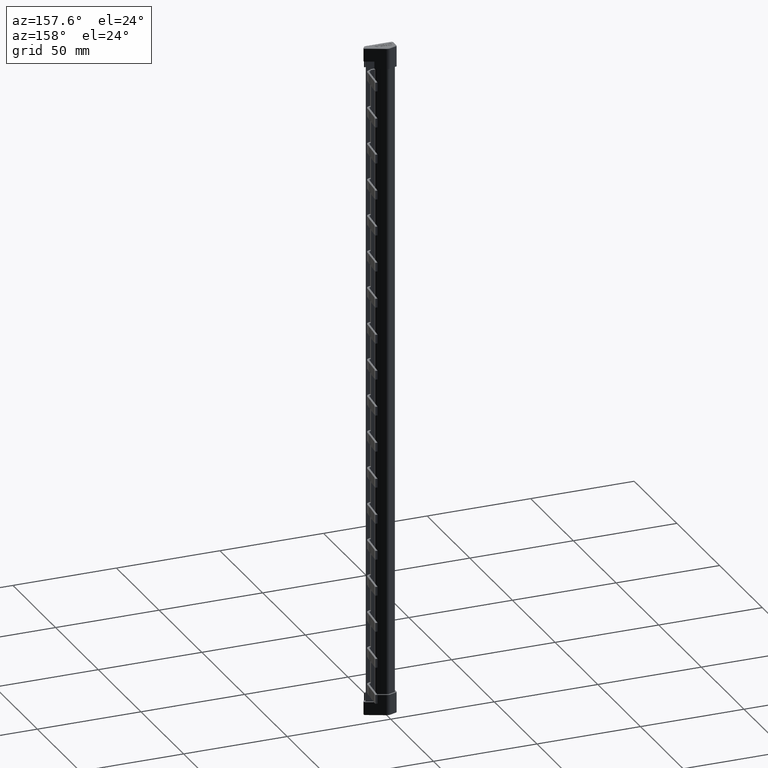
[diagram: clean part render]
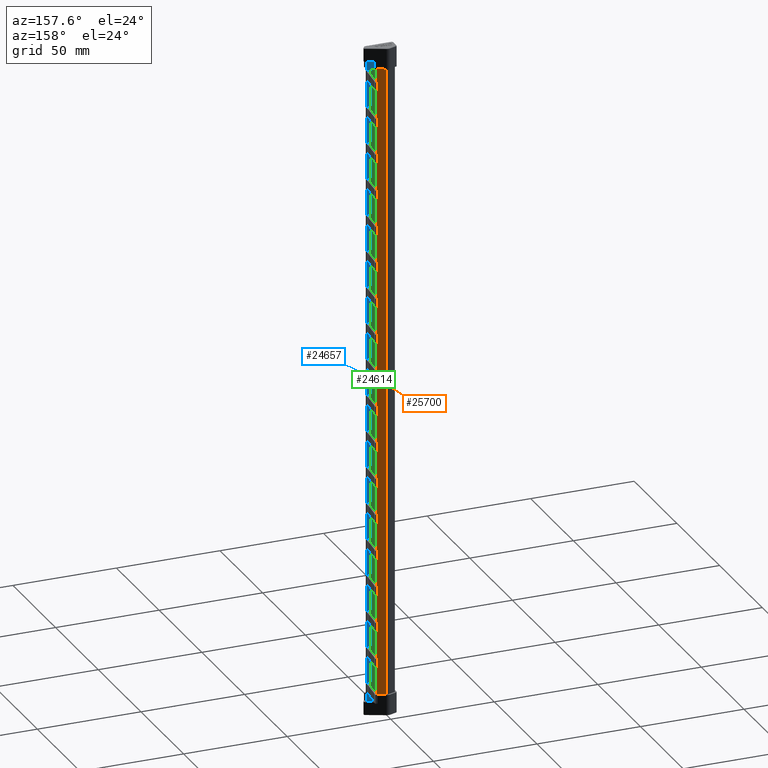
[diagram: same view with three faces highlighted in distinct colors, each labeled with its STEP entity id]
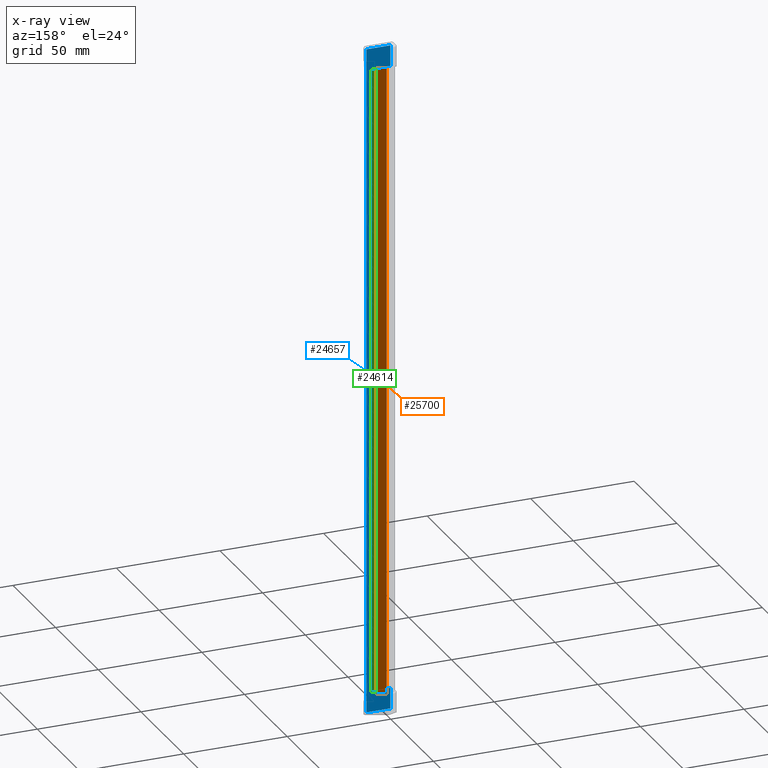
[diagram: x-ray of the same camera — body ghosted, the three highlighted faces saturated]
A machine part, auxiliary view with three faces highlighted in distinct colors.
The next image is the same camera in x-ray (body ghosted, the three faces saturated) — at least one of them is partly hidden behind the body in this view.
Their STEP definitions:

[orange] entity #25700 — the highlighted planar face has unit normal (-0.4021, -0.9156, 0).
#3764 = CARTESIAN_POINT ( 'NONE',  ( 4.041246672134451300, 5.040290789019117300, 219.0000000000000000 ) ) ;
#3768 = CARTESIAN_POINT ( 'NONE',  ( 4.023631281896191700, 5.048082171870592400, -104.9999999999999600 ) ) ;
#3781 = CARTESIAN_POINT ( 'NONE',  ( 4.023631281896191700, 5.048082171870591500, 219.0000000000000000 ) ) ;
#3795 = CARTESIAN_POINT ( 'NONE',  ( 4.041246672138782100, 5.040290789017182000, 209.9000000000000100 ) ) ;
#3844 = CARTESIAN_POINT ( 'NONE',  ( 4.041246672138773200, 5.040290789017189100, -95.90000000000002000 ) ) ;
#3861 = CARTESIAN_POINT ( 'NONE',  ( 4.041246672134451300, 5.040290789019117300, -104.9999999999999700 ) ) ;
#4503 = CARTESIAN_POINT ( 'NONE',  ( 8.337551775104342900, 3.153583439745995000, 209.9000000000000100 ) ) ;
#6702 = B_SPLINE_CURVE_WITH_KNOTS ( 'NONE', 3,
 ( #21977, #21984, #22027, #22026 ),
 .UNSPECIFIED., .F., .F.,
 ( 4, 4 ),
 ( 0.0000000000000000000, 1.000000000000000000 ),
 .UNSPECIFIED. ) ;
#6709 = B_SPLINE_CURVE_WITH_KNOTS ( 'NONE', 3,
 ( #21861, #21876, #21877, #21879 ),
 .UNSPECIFIED., .F., .F.,
 ( 4, 4 ),
 ( 0.0000000000000000000, 1.000000000000000000 ),
 .UNSPECIFIED. ) ;
#6730 = CARTESIAN_POINT ( 'NONE',  ( 8.337549575065260400, 3.153584405884049400, 219.0000000000000000 ) ) ;
#6745 = PLANE ( 'NONE',  #26524 ) ;
#6755 = DIRECTION ( 'NONE',  ( 0.9156028725539479000, -0.4020837969515297400, 0.0000000000000000000 ) ) ;
#6756 = DIRECTION ( 'NONE',  ( -0.4020837969515297400, -0.9156028725539479000, 9.339969566632776300E-019 ) ) ;
#6758 = LINE ( 'NONE', #6769, #26564 ) ;
#6769 = CARTESIAN_POINT ( 'NONE',  ( 4.023610798727805400, 5.048035521101578400, 219.0000000000000000 ) ) ;
#6786 = CARTESIAN_POINT ( 'NONE',  ( 4.041246672134435300, 5.040290789019082700, 219.0000000000000000 ) ) ;
#6805 = DIRECTION ( 'NONE',  ( 3.755450426763440500E-019, 8.551702964775421900E-019, 1.000000000000000000 ) ) ;
#6806 = DIRECTION ( 'NONE',  ( -3.755450426763440500E-019, -8.551702964775421900E-019, -1.000000000000000000 ) ) ;
#6813 = LINE ( 'NONE', #6786, #26547 ) ;
#6827 = CARTESIAN_POINT ( 'NONE',  ( 4.041246672134439800, 5.040290789019096000, -95.90000000000000600 ) ) ;
#6830 = LINE ( 'NONE', #6827, #26566 ) ;
#6865 = DIRECTION ( 'NONE',  ( 0.9156028725539388000, -0.4020837969515503900, 0.0000000000000000000 ) ) ;
#7858 = FACE_OUTER_BOUND ( 'NONE', #14053, .T. ) ;
#10792 = CARTESIAN_POINT ( 'NONE',  ( 8.337550675084532500, 3.153583922814410900, -95.89999999999999100 ) ) ;
#12100 = VERTEX_POINT ( 'NONE', #10792 ) ;
#14053 = EDGE_LOOP ( 'NONE', ( #23879, #23924, #23876, #23907, #23892, #23905, #23883, #23926 ) ) ;
#21861 = CARTESIAN_POINT ( 'NONE',  ( 4.023631281896191700, 5.048082171870591500, 219.0000000000000000 ) ) ;
#21876 = CARTESIAN_POINT ( 'NONE',  ( 4.029489423196682000, 5.045453943740746200, 219.0000000000000000 ) ) ;
#21877 = CARTESIAN_POINT ( 'NONE',  ( 4.035368047665558700, 5.042872366379914900, 219.0000000000000000 ) ) ;
#21879 = CARTESIAN_POINT ( 'NONE',  ( 4.041246672134451300, 5.040290789019117300, 219.0000000000000000 ) ) ;
#21948 = DIRECTION ( 'NONE',  ( 3.755450426763440500E-019, 8.551702964775421900E-019, 1.000000000000000000 ) ) ;
#21971 = CARTESIAN_POINT ( 'NONE',  ( 4.041246672134435300, 5.040290789019082700, 219.0000000000000000 ) ) ;
#21974 = LINE ( 'NONE', #21971, #26407 ) ;
#21977 = CARTESIAN_POINT ( 'NONE',  ( 4.023631281896191700, 5.048082171870592400, -104.9999999999999600 ) ) ;
#21984 = CARTESIAN_POINT ( 'NONE',  ( 4.029530657293334700, 5.045547550304820400, -104.9999999999999900 ) ) ;
#21997 = CARTESIAN_POINT ( 'NONE',  ( 8.337551775103824200, 3.153583439744814600, 219.0000000000000000 ) ) ;
#22016 = LINE ( 'NONE', #21997, #26479 ) ;
#22026 = CARTESIAN_POINT ( 'NONE',  ( 4.041246672134451300, 5.040290789019117300, -104.9999999999999700 ) ) ;
#22027 = CARTESIAN_POINT ( 'NONE',  ( 4.035395738251794200, 5.042934822567399800, -104.9999999999999900 ) ) ;
#22031 = DIRECTION ( 'NONE',  ( 3.755450426763440500E-019, 8.551702964775421900E-019, 1.000000000000000000 ) ) ;
#22033 = DIRECTION ( 'NONE',  ( -0.9156028725539388000, 0.4020837969515503900, 0.0000000000000000000 ) ) ;
#22066 = CARTESIAN_POINT ( 'NONE',  ( 8.337551775103786900, 3.153583439744730200, 209.9000000000000100 ) ) ;
#22081 = LINE ( 'NONE', #22066, #26498 ) ;
#23876 = ORIENTED_EDGE ( 'NONE', *, *, #25652, .F. ) ;
#23879 = ORIENTED_EDGE ( 'NONE', *, *, #25714, .F. ) ;
#23883 = ORIENTED_EDGE ( 'NONE', *, *, #25709, .F. ) ;
#23892 = ORIENTED_EDGE ( 'NONE', *, *, #25636, .F. ) ;
#23905 = ORIENTED_EDGE ( 'NONE', *, *, #25651, .F. ) ;
#23907 = ORIENTED_EDGE ( 'NONE', *, *, #25723, .F. ) ;
#23924 = ORIENTED_EDGE ( 'NONE', *, *, #25667, .F. ) ;
#23926 = ORIENTED_EDGE ( 'NONE', *, *, #25618, .T. ) ;
#25618 = EDGE_CURVE ( 'NONE', #27449, #27436, #6709, .T. ) ;
#25636 = EDGE_CURVE ( 'NONE', #27469, #27467, #21974, .T. ) ;
#25651 = EDGE_CURVE ( 'NONE', #27450, #27469, #6702, .T. ) ;
#25652 = EDGE_CURVE ( 'NONE', #12100, #28100, #22016, .T. ) ;
#25667 = EDGE_CURVE ( 'NONE', #28100, #27458, #22081, .T. ) ;
#25700 = ADVANCED_FACE ( 'NONE', ( #7858 ), #6745, .F. ) ;
#25709 = EDGE_CURVE ( 'NONE', #27449, #27450, #6758, .T. ) ;
#25714 = EDGE_CURVE ( 'NONE', #27458, #27436, #6813, .T. ) ;
#25723 = EDGE_CURVE ( 'NONE', #27467, #12100, #6830, .T. ) ;
#26407 = VECTOR ( 'NONE', #21948, 1000.000000000000000 ) ;
#26479 = VECTOR ( 'NONE', #22031, 1000.000000000000000 ) ;
#26498 = VECTOR ( 'NONE', #22033, 1000.000000000000200 ) ;
#26524 = AXIS2_PLACEMENT_3D ( 'NONE', #6730, #6756, #6755 ) ;
#26547 = VECTOR ( 'NONE', #6805, 1000.000000000000000 ) ;
#26564 = VECTOR ( 'NONE', #6806, 1000.000000000000000 ) ;
#26566 = VECTOR ( 'NONE', #6865, 1000.000000000000200 ) ;
#27436 = VERTEX_POINT ( 'NONE', #3764 ) ;
#27449 = VERTEX_POINT ( 'NONE', #3781 ) ;
#27450 = VERTEX_POINT ( 'NONE', #3768 ) ;
#27458 = VERTEX_POINT ( 'NONE', #3795 ) ;
#27467 = VERTEX_POINT ( 'NONE', #3844 ) ;
#27469 = VERTEX_POINT ( 'NONE', #3861 ) ;
#28100 = VERTEX_POINT ( 'NONE', #4503 ) ;

[blue] entity #24657 — the highlighted planar face has unit normal (-0, -1, 0).
#20 = VECTOR ( 'NONE', #1349, 1000.000000000000000 ) ;
#60 = VECTOR ( 'NONE', #1343, 1000.000000000000000 ) ;
#550 = LINE ( 'NONE', #567, #5556 ) ;
#567 = CARTESIAN_POINT ( 'NONE',  ( 10.39174218936983300, 1.100000108196531400, 173.5000000000000300 ) ) ;
#588 = LINE ( 'NONE', #617, #5549 ) ;
#605 = DIRECTION ( 'NONE',  ( 0.9999999999999794600, -2.028973208167720200E-007, 1.654363045001526200E-024 ) ) ;
#606 = DIRECTION ( 'NONE',  ( 0.9999999999999794600, -2.028973208167720200E-007, 1.654363045001526200E-024 ) ) ;
#617 = CARTESIAN_POINT ( 'NONE',  ( 10.39174218936983300, 1.100000108196531400, 81.20000000000003100 ) ) ;
#620 = LINE ( 'NONE', #645, #5586 ) ;
#623 = DIRECTION ( 'NONE',  ( 0.9999999999999794600, -2.028973208167720200E-007, 1.654363045001526200E-024 ) ) ;
#628 = DIRECTION ( 'NONE',  ( 0.9999999999999794600, -2.028973208167720200E-007, 1.654363045001526200E-024 ) ) ;
#634 = CARTESIAN_POINT ( 'NONE',  ( 10.39174218936983300, 1.100000108196531400, 116.4000000000000200 ) ) ;
#645 = CARTESIAN_POINT ( 'NONE',  ( 10.39174218936983300, 1.100000108196531400, 169.2000000000000500 ) ) ;
#657 = LINE ( 'NONE', #634, #5569 ) ;
#758 = DIRECTION ( 'NONE',  ( 0.9999999999999794600, -2.028973208167720200E-007, 1.654363045001526200E-024 ) ) ;
#766 = LINE ( 'NONE', #768, #5627 ) ;
#768 = CARTESIAN_POINT ( 'NONE',  ( 10.39174218936983300, 1.100000108196531400, 208.7000000000000500 ) ) ;
#782 = LINE ( 'NONE', #814, #5655 ) ;
#792 = CARTESIAN_POINT ( 'NONE',  ( 10.39174218936983300, 1.100000108196531400, 186.8000000000000100 ) ) ;
#811 = LINE ( 'NONE', #792, #5603 ) ;
#812 = DIRECTION ( 'NONE',  ( 0.9999999999999794600, -2.028973208167720200E-007, 1.654363045001526200E-024 ) ) ;
#814 = CARTESIAN_POINT ( 'NONE',  ( 10.39174218936983300, 1.100000108196531400, 204.4000000000000300 ) ) ;
#817 = DIRECTION ( 'NONE',  ( 0.9999999999999794600, -2.028973208167720200E-007, 1.654363045001526200E-024 ) ) ;
#821 = CARTESIAN_POINT ( 'NONE',  ( 10.39174218936983300, 1.100000108196531400, 151.6000000000000200 ) ) ;
#832 = LINE ( 'NONE', #876, #5623 ) ;
#845 = DIRECTION ( 'NONE',  ( 0.9999999999999794600, -2.028973208167720200E-007, 1.654363045001526200E-024 ) ) ;
#850 = LINE ( 'NONE', #821, #5650 ) ;
#867 = CARTESIAN_POINT ( 'NONE',  ( 10.39174218936983300, 1.100000108196531400, 103.1000000000000200 ) ) ;
#872 = DIRECTION ( 'NONE',  ( 0.9999999999999794600, -2.028973208167720200E-007, 1.654363045001526200E-024 ) ) ;
#876 = CARTESIAN_POINT ( 'NONE',  ( 10.39174218936983300, 1.100000108196531400, 155.9000000000000600 ) ) ;
#878 = DIRECTION ( 'NONE',  ( 0.9999999999999794600, -2.028973208167720200E-007, 1.654363045001526200E-024 ) ) ;
#880 = DIRECTION ( 'NONE',  ( 0.9999999999999794600, -2.028973208167720200E-007, 1.654363045001526200E-024 ) ) ;
#883 = LINE ( 'NONE', #867, #5651 ) ;
#890 = LINE ( 'NONE', #891, #5654 ) ;
#891 = CARTESIAN_POINT ( 'NONE',  ( 10.39174218936983300, 1.100000108196531400, 10.80000000000001000 ) ) ;
#909 = CARTESIAN_POINT ( 'NONE',  ( 10.39174218936983300, 1.100000108196531400, 138.3000000000000400 ) ) ;
#911 = LINE ( 'NONE', #933, #5702 ) ;
#922 = DIRECTION ( 'NONE',  ( 0.9999999999999794600, -2.028973208167720200E-007, 1.654363045001526200E-024 ) ) ;
#925 = CARTESIAN_POINT ( 'NONE',  ( 10.39174218936983300, 1.100000108196531400, 63.60000000000001600 ) ) ;
#926 = LINE ( 'NONE', #909, #5682 ) ;
#927 = DIRECTION ( 'NONE',  ( 0.9999999999999794600, -2.028973208167720200E-007, 1.654363045001526200E-024 ) ) ;
#932 = DIRECTION ( 'NONE',  ( 0.9999999999999794600, -2.028973208167720200E-007, 1.654363045001526200E-024 ) ) ;
#933 = CARTESIAN_POINT ( 'NONE',  ( 10.39174218936983300, 1.100000108196531400, 32.70000000000000300 ) ) ;
#939 = LINE ( 'NONE', #925, #5674 ) ;
#950 = LINE ( 'NONE', #980, #5686 ) ;
#980 = CARTESIAN_POINT ( 'NONE',  ( 10.39174218936983300, 1.100000108196531400, 98.80000000000002600 ) ) ;
#990 = DIRECTION ( 'NONE',  ( 0.9999999999999794600, -2.028973208167720200E-007, 1.654363045001526200E-024 ) ) ;
#994 = CARTESIAN_POINT ( 'NONE',  ( 10.39174218936983300, 1.100000108196531400, 67.90000000000003400 ) ) ;
#996 = DIRECTION ( 'NONE',  ( 0.9999999999999794600, -2.028973208167720200E-007, 1.654363045001526200E-024 ) ) ;
#997 = CARTESIAN_POINT ( 'NONE',  ( 10.39174218936983300, 1.100000108196531400, 85.50000000000001400 ) ) ;
#998 = DIRECTION ( 'NONE',  ( 0.9999999999999794600, -2.028973208167720200E-007, 1.654363045001526200E-024 ) ) ;
#1010 = CARTESIAN_POINT ( 'NONE',  ( 10.39174218936983300, 1.100000108196531400, 120.7000000000000200 ) ) ;
#1022 = DIRECTION ( 'NONE',  ( 0.9999999999999794600, -2.028973208167720200E-007, 1.654363045001526200E-024 ) ) ;
#1024 = LINE ( 'NONE', #1010, #5723 ) ;
#1025 = CARTESIAN_POINT ( 'NONE',  ( 10.39174218936983300, 1.100000108196531400, 134.0000000000000000 ) ) ;
#1027 = LINE ( 'NONE', #997, #5713 ) ;
#1034 = LINE ( 'NONE', #1025, #5721 ) ;
#1037 = LINE ( 'NONE', #994, #5711 ) ;
#1041 = LINE ( 'NONE', #1053, #4774 ) ;
#1042 = DIRECTION ( 'NONE',  ( 0.9999999999999794600, -2.028973208167720200E-007, 1.654363045001526200E-024 ) ) ;
#1051 = DIRECTION ( 'NONE',  ( 0.9999999999999794600, -2.028973208167720200E-007, 1.654363045001526200E-024 ) ) ;
#1053 = CARTESIAN_POINT ( 'NONE',  ( 10.39174218936983300, 1.100000108196531400, -24.39999999999997000 ) ) ;
#1065 = LINE ( 'NONE', #1066, #5724 ) ;
#1066 = CARTESIAN_POINT ( 'NONE',  ( 10.39174218936983300, 1.100000108196531400, 46.00000000000002100 ) ) ;
#1070 = DIRECTION ( 'NONE',  ( 0.9999999999999794600, -2.028973208167720200E-007, 1.654363045001526200E-024 ) ) ;
#1083 = CARTESIAN_POINT ( 'NONE',  ( 10.39174218936983300, 1.100000108196531400, 28.40000000000002000 ) ) ;
#1088 = DIRECTION ( 'NONE',  ( 0.9999999999999794600, -2.028973208167720200E-007, 1.654363045001526200E-024 ) ) ;
#1098 = DIRECTION ( 'NONE',  ( 0.9999999999999794600, -2.028973208167720200E-007, 1.654363045001526200E-024 ) ) ;
#1104 = CARTESIAN_POINT ( 'NONE',  ( 10.39174218936983300, 1.100000108196531400, 50.30000000000001100 ) ) ;
#1106 = DIRECTION ( 'NONE',  ( 0.9999999999999794600, -2.028973208167720200E-007, 1.654363045001526200E-024 ) ) ;
#1112 = CARTESIAN_POINT ( 'NONE',  ( 10.39174218936983300, 1.100000108196531400, -37.69999999999998900 ) ) ;
#1113 = LINE ( 'NONE', #1083, #5211 ) ;
#1115 = LINE ( 'NONE', #1112, #5705 ) ;
#1118 = LINE ( 'NONE', #1104, #5639 ) ;
#1141 = DIRECTION ( 'NONE',  ( 0.9999999999999794600, -2.028973208167720200E-007, 1.654363045001526200E-024 ) ) ;
#1145 = LINE ( 'NONE', #1168, #29432 ) ;
#1168 = CARTESIAN_POINT ( 'NONE',  ( 10.39174218936983300, 1.100000108196531400, 15.09999999999999800 ) ) ;
#1170 = LINE ( 'NONE', #1171, #29427 ) ;
#1171 = CARTESIAN_POINT ( 'NONE',  ( 10.39174218936983300, 1.100000108196531400, -6.799999999999968700 ) ) ;
#1173 = DIRECTION ( 'NONE',  ( 0.9999999999999794600, -2.028973208167720200E-007, 1.654363045001526200E-024 ) ) ;
#1230 = DIRECTION ( 'NONE',  ( 0.9999999999999794600, -2.028973208167720200E-007, 1.654363045001526200E-024 ) ) ;
#1242 = CARTESIAN_POINT ( 'NONE',  ( 10.39174218936983300, 1.100000108196531400, -20.09999999999998700 ) ) ;
#1244 = LINE ( 'NONE', #1242, #29431 ) ;
#1300 = LINE ( 'NONE', #1318, #20 ) ;
#1318 = CARTESIAN_POINT ( 'NONE',  ( 10.39174218936983300, 1.100000108196531400, -41.99999999999997200 ) ) ;
#1330 = LINE ( 'NONE', #1338, #60 ) ;
#1338 = CARTESIAN_POINT ( 'NONE',  ( 10.39174218936983300, 1.100000108196531400, -2.499999999999980000 ) ) ;
#1343 = DIRECTION ( 'NONE',  ( 0.9999999999999794600, -2.028973208167720200E-007, 1.654363045001526200E-024 ) ) ;
#1349 = DIRECTION ( 'NONE',  ( 0.9999999999999794600, -2.028973208167720200E-007, 1.654363045001526200E-024 ) ) ;
#1410 = CARTESIAN_POINT ( 'NONE',  ( 10.39174218936983300, 1.100000108196531400, 191.1000000000000200 ) ) ;
#1442 = LINE ( 'NONE', #1410, #5516 ) ;
#1443 = DIRECTION ( 'NONE',  ( 0.9999999999999794600, -2.028973208167720200E-007, 1.654363045001526200E-024 ) ) ;
#4009 = CARTESIAN_POINT ( 'NONE',  ( 10.58351463784652700, 1.100000069286415400, 186.8000000000000100 ) ) ;
#4050 = CARTESIAN_POINT ( 'NONE',  ( 10.58351463784652700, 1.100000069286415400, 204.4000000000000300 ) ) ;
#4071 = CARTESIAN_POINT ( 'NONE',  ( 10.37430495582775700, 1.100000111734499500, 191.1000000000000200 ) ) ;
#4085 = CARTESIAN_POINT ( 'NONE',  ( 10.58351463784652700, 1.100000069286415400, 46.00000000000001400 ) ) ;
#4086 = CARTESIAN_POINT ( 'NONE',  ( 10.37430495582775700, 1.100000111734499500, 28.40000000000000900 ) ) ;
#4093 = CARTESIAN_POINT ( 'NONE',  ( 10.58351463784652700, 1.100000069286415400, 191.1000000000000200 ) ) ;
#4095 = CARTESIAN_POINT ( 'NONE',  ( 10.58351463784652700, 1.100000069286415400, 169.2000000000000500 ) ) ;
#4096 = CARTESIAN_POINT ( 'NONE',  ( 10.37430495582775700, 1.100000111734499500, 103.1000000000000200 ) ) ;
#4097 = CARTESIAN_POINT ( 'NONE',  ( 10.37430495582775700, 1.100000111734499500, 204.4000000000000300 ) ) ;
#4098 = CARTESIAN_POINT ( 'NONE',  ( 10.58351463784652700, 1.100000069286415400, 208.7000000000000500 ) ) ;
#4100 = CARTESIAN_POINT ( 'NONE',  ( 10.37430495582775700, 1.100000111734499500, 85.50000000000001400 ) ) ;
#4103 = CARTESIAN_POINT ( 'NONE',  ( 10.37430495582775700, 1.100000111734499500, 186.8000000000000100 ) ) ;
#4107 = CARTESIAN_POINT ( 'NONE',  ( 10.58351463784652700, 1.100000069286415400, 81.20000000000001700 ) ) ;
#4109 = CARTESIAN_POINT ( 'NONE',  ( 10.37430495582754000, 1.100000111734499500, 208.7000000000000500 ) ) ;
#4115 = CARTESIAN_POINT ( 'NONE',  ( 10.37430495582775700, 1.100000111734499500, 169.2000000000000500 ) ) ;
#4121 = CARTESIAN_POINT ( 'NONE',  ( 10.58351463784652700, 1.100000069286415400, 67.90000000000004800 ) ) ;
#4133 = CARTESIAN_POINT ( 'NONE',  ( 10.37430495582775700, 1.100000111734499500, 173.5000000000000300 ) ) ;
#4138 = CARTESIAN_POINT ( 'NONE',  ( 10.37430495582775700, 1.100000111734499500, 81.20000000000001700 ) ) ;
#4140 = CARTESIAN_POINT ( 'NONE',  ( 10.37430495582775700, 1.100000111734499500, 151.6000000000000200 ) ) ;
#4141 = CARTESIAN_POINT ( 'NONE',  ( 10.58351463784652700, 1.100000069286415400, 173.5000000000000300 ) ) ;
#4144 = CARTESIAN_POINT ( 'NONE',  ( 10.37430495582775700, 1.100000111734499500, 138.3000000000000400 ) ) ;
#4148 = CARTESIAN_POINT ( 'NONE',  ( 10.37430495582775700, 1.100000111734499500, 98.80000000000002600 ) ) ;
#4150 = CARTESIAN_POINT ( 'NONE',  ( 10.37430495582775700, 1.100000111734499500, 63.60000000000001600 ) ) ;
#4153 = CARTESIAN_POINT ( 'NONE',  ( 10.58351463784652700, 1.100000069286415400, 120.7000000000000200 ) ) ;
#4154 = CARTESIAN_POINT ( 'NONE',  ( 10.58351463784652700, 1.100000069286415400, 151.6000000000000200 ) ) ;
#4157 = CARTESIAN_POINT ( 'NONE',  ( 10.58351463784652700, 1.100000069286415400, -90.50000000000000000 ) ) ;
#4162 = CARTESIAN_POINT ( 'NONE',  ( 10.58351463784652700, 1.100000069286415400, -94.79999999999996900 ) ) ;
#4164 = CARTESIAN_POINT ( 'NONE',  ( 10.37430495582775700, 1.100000111734499500, 46.00000000000001400 ) ) ;
#4166 = CARTESIAN_POINT ( 'NONE',  ( 10.58351463784652700, 1.100000069286415400, 103.1000000000000200 ) ) ;
#4167 = CARTESIAN_POINT ( 'NONE',  ( 10.37430495582775700, 1.100000111734499500, 134.0000000000000000 ) ) ;
#4168 = CARTESIAN_POINT ( 'NONE',  ( 10.37430495582775700, 1.100000111734499500, 155.9000000000000600 ) ) ;
#4172 = CARTESIAN_POINT ( 'NONE',  ( 10.58351463784652700, 1.100000069286415400, 50.30000000000001100 ) ) ;
#4174 = CARTESIAN_POINT ( 'NONE',  ( 10.58351463784652700, 1.100000069286415400, 134.0000000000000000 ) ) ;
#4179 = CARTESIAN_POINT ( 'NONE',  ( 10.58351463784652700, 1.100000069286415400, 155.9000000000000600 ) ) ;
#4180 = CARTESIAN_POINT ( 'NONE',  ( 10.37430495582775700, 1.100000111734499500, 67.90000000000004800 ) ) ;
#4182 = CARTESIAN_POINT ( 'NONE',  ( 10.58351463784652700, 1.100000069286415400, 98.80000000000002600 ) ) ;
#4184 = CARTESIAN_POINT ( 'NONE',  ( 10.37430495582775700, 1.100000111734499500, -94.79999999999996900 ) ) ;
#4187 = CARTESIAN_POINT ( 'NONE',  ( 10.58351463784652700, 1.100000069286415400, 28.40000000000000900 ) ) ;
#4195 = CARTESIAN_POINT ( 'NONE',  ( 10.58351463784652700, 1.100000069286415400, 116.4000000000000200 ) ) ;
#4199 = CARTESIAN_POINT ( 'NONE',  ( 10.37430495582775700, 1.100000111734499500, -72.89999999999999100 ) ) ;
#4202 = CARTESIAN_POINT ( 'NONE',  ( 10.58351463784652700, 1.100000069286415400, 15.10000000000000100 ) ) ;
#4210 = CARTESIAN_POINT ( 'NONE',  ( 10.58351463784652700, 1.100000069286415400, 10.80000000000000400 ) ) ;
#4211 = CARTESIAN_POINT ( 'NONE',  ( 10.37430495582775700, 1.100000111734499500, 10.80000000000000400 ) ) ;
#4213 = CARTESIAN_POINT ( 'NONE',  ( 10.37430495582775700, 1.100000111734499500, 15.10000000000000100 ) ) ;
#4214 = CARTESIAN_POINT ( 'NONE',  ( 10.58351463784652700, 1.100000069286415400, 32.70000000000001000 ) ) ;
#4215 = CARTESIAN_POINT ( 'NONE',  ( 10.37430495582775700, 1.100000111734499500, -20.09999999999998000 ) ) ;
#4217 = CARTESIAN_POINT ( 'NONE',  ( 10.58351463784652700, 1.100000069286415400, -72.89999999999999100 ) ) ;
#4218 = CARTESIAN_POINT ( 'NONE',  ( 10.37430495582775700, 1.100000111734499500, -90.50000000000000000 ) ) ;
#4221 = CARTESIAN_POINT ( 'NONE',  ( 10.37430495582775700, 1.100000111734499500, -59.59999999999995900 ) ) ;
#4222 = CARTESIAN_POINT ( 'NONE',  ( 10.58351463784652700, 1.100000069286415400, -24.39999999999997700 ) ) ;
#4223 = CARTESIAN_POINT ( 'NONE',  ( 10.58351463784652700, 1.100000069286415400, -77.20000000000001700 ) ) ;
#4226 = CARTESIAN_POINT ( 'NONE',  ( 10.37430495582775700, 1.100000111734499500, -55.29999999999999000 ) ) ;
#4228 = CARTESIAN_POINT ( 'NONE',  ( 10.58351463784652700, 1.100000069286415400, 85.50000000000001400 ) ) ;
#4230 = CARTESIAN_POINT ( 'NONE',  ( 10.37430495582775700, 1.100000111734499500, 116.4000000000000200 ) ) ;
#4233 = CARTESIAN_POINT ( 'NONE',  ( 10.37430495582775700, 1.100000111734499500, 50.30000000000001100 ) ) ;
#4234 = CARTESIAN_POINT ( 'NONE',  ( 10.37430495582775700, 1.100000111734499500, -41.99999999999995700 ) ) ;
#4236 = CARTESIAN_POINT ( 'NONE',  ( 10.58351463784652700, 1.100000069286415400, -6.799999999999972300 ) ) ;
#4237 = CARTESIAN_POINT ( 'NONE',  ( 10.58351463784652700, 1.100000069286415400, -41.99999999999995700 ) ) ;
#4244 = CARTESIAN_POINT ( 'NONE',  ( 10.58351463784652700, 1.100000069286415400, -2.499999999999974200 ) ) ;
#4247 = CARTESIAN_POINT ( 'NONE',  ( 10.58351463784652700, 1.100000069286415400, -37.69999999999998200 ) ) ;
#4249 = CARTESIAN_POINT ( 'NONE',  ( 10.37430495582775700, 1.100000111734499500, 120.7000000000000200 ) ) ;
#4250 = CARTESIAN_POINT ( 'NONE',  ( 10.58351463784652700, 1.100000069286415400, -55.29999999999999000 ) ) ;
#4252 = CARTESIAN_POINT ( 'NONE',  ( 10.37430495582775700, 1.100000111734499500, -77.20000000000001700 ) ) ;
#4259 = CARTESIAN_POINT ( 'NONE',  ( 10.37430495582775700, 1.100000111734499500, -37.69999999999998200 ) ) ;
#4260 = CARTESIAN_POINT ( 'NONE',  ( 10.58351463784652700, 1.100000069286415400, 63.60000000000001600 ) ) ;
#4262 = CARTESIAN_POINT ( 'NONE',  ( 10.58351463784652700, 1.100000069286415400, 138.3000000000000400 ) ) ;
#4270 = CARTESIAN_POINT ( 'NONE',  ( 0.5999928904455424900, 1.100000550454310900, -94.99999999999997200 ) ) ;
#4276 = CARTESIAN_POINT ( 'NONE',  ( 0.5999928904456702800, 1.100000219591716200, 209.0000000000000300 ) ) ;
#4278 = CARTESIAN_POINT ( 'NONE',  ( 12.20616429985077500, 1.099999740055146900, -104.9999999999999600 ) ) ;
#4279 = CARTESIAN_POINT ( 'NONE',  ( 10.37430495582775700, 1.100000111734499500, -2.499999999999974200 ) ) ;
#4304 = CARTESIAN_POINT ( 'NONE',  ( 10.37430495582775700, 1.100000111734499500, -24.39999999999997700 ) ) ;
#4307 = CARTESIAN_POINT ( 'NONE',  ( 10.37430495582775700, 1.100000111734499500, 32.70000000000001000 ) ) ;
#4309 = CARTESIAN_POINT ( 'NONE',  ( 10.58351463784652700, 1.100000069286415400, -59.59999999999995900 ) ) ;
#4314 = CARTESIAN_POINT ( 'NONE',  ( 10.58351463784652700, 1.100000069286415400, -20.09999999999998000 ) ) ;
#4317 = CARTESIAN_POINT ( 'NONE',  ( 10.37430495582775700, 1.100000111734499500, -6.799999999999972300 ) ) ;
#4395 = CARTESIAN_POINT ( 'NONE',  ( 0.5999928904458802200, 1.100002094916230400, 219.0000000000000000 ) ) ;
#4405 = CARTESIAN_POINT ( 'NONE',  ( 10.37430495582757800, 1.099999228333157000, -94.99999999999995700 ) ) ;
#4440 = CARTESIAN_POINT ( 'NONE',  ( 0.5999928904456217600, 1.100002094916230400, -104.9999999999999700 ) ) ;
#4444 = CARTESIAN_POINT ( 'NONE',  ( 10.37430495582721900, 1.099999594483536100, 209.0000000000000300 ) ) ;
#4448 = CARTESIAN_POINT ( 'NONE',  ( 12.20616429985077500, 1.099999740055146900, 219.0000000000000000 ) ) ;
#4774 = VECTOR ( 'NONE', #1051, 1000.000000000000000 ) ;
#5211 = VECTOR ( 'NONE', #1098, 1000.000000000000000 ) ;
#5516 = VECTOR ( 'NONE', #1443, 1000.000000000000000 ) ;
#5549 = VECTOR ( 'NONE', #605, 1000.000000000000000 ) ;
#5556 = VECTOR ( 'NONE', #606, 1000.000000000000000 ) ;
#5569 = VECTOR ( 'NONE', #628, 1000.000000000000000 ) ;
#5586 = VECTOR ( 'NONE', #623, 1000.000000000000000 ) ;
#5603 = VECTOR ( 'NONE', #812, 1000.000000000000000 ) ;
#5623 = VECTOR ( 'NONE', #880, 1000.000000000000000 ) ;
#5627 = VECTOR ( 'NONE', #758, 1000.000000000000000 ) ;
#5639 = VECTOR ( 'NONE', #1106, 1000.000000000000000 ) ;
#5650 = VECTOR ( 'NONE', #845, 1000.000000000000000 ) ;
#5651 = VECTOR ( 'NONE', #872, 1000.000000000000000 ) ;
#5654 = VECTOR ( 'NONE', #878, 1000.000000000000000 ) ;
#5655 = VECTOR ( 'NONE', #817, 1000.000000000000000 ) ;
#5674 = VECTOR ( 'NONE', #922, 1000.000000000000000 ) ;
#5682 = VECTOR ( 'NONE', #927, 1000.000000000000000 ) ;
#5686 = VECTOR ( 'NONE', #990, 1000.000000000000000 ) ;
#5702 = VECTOR ( 'NONE', #932, 1000.000000000000000 ) ;
#5705 = VECTOR ( 'NONE', #1088, 1000.000000000000000 ) ;
#5711 = VECTOR ( 'NONE', #1022, 1000.000000000000000 ) ;
#5713 = VECTOR ( 'NONE', #1070, 1000.000000000000000 ) ;
#5721 = VECTOR ( 'NONE', #996, 1000.000000000000000 ) ;
#5723 = VECTOR ( 'NONE', #998, 1000.000000000000000 ) ;
#5724 = VECTOR ( 'NONE', #1042, 1000.000000000000000 ) ;
#5835 = EDGE_CURVE ( 'NONE', #27763, #27775, #1442, .T. ) ;
#5874 = EDGE_CURVE ( 'NONE', #27760, #27782, #550, .T. ) ;
#5877 = EDGE_CURVE ( 'NONE', #27833, #27759, #588, .T. ) ;
#5887 = EDGE_CURVE ( 'NONE', #27778, #27776, #620, .T. ) ;
#5891 = EDGE_CURVE ( 'NONE', #27857, #27824, #657, .T. ) ;
#5903 = EDGE_CURVE ( 'NONE', #27767, #27720, #766, .T. ) ;
#5915 = EDGE_CURVE ( 'NONE', #27755, #27714, #782, .T. ) ;
#5917 = EDGE_CURVE ( 'NONE', #27744, #27674, #811, .T. ) ;
#5925 = EDGE_CURVE ( 'NONE', #27788, #27831, #850, .T. ) ;
#5937 = EDGE_CURVE ( 'NONE', #27838, #27814, #832, .T. ) ;
#5940 = EDGE_CURVE ( 'NONE', #27750, #27821, #883, .T. ) ;
#5948 = EDGE_CURVE ( 'NONE', #27901, #27877, #890, .T. ) ;
#5957 = EDGE_CURVE ( 'NONE', #27826, #27847, #939, .T. ) ;
#5960 = EDGE_CURVE ( 'NONE', #27813, #27852, #926, .T. ) ;
#5962 = EDGE_CURVE ( 'NONE', #27927, #27849, #911, .T. ) ;
#5969 = EDGE_CURVE ( 'NONE', #27820, #27843, #950, .T. ) ;
#5983 = EDGE_CURVE ( 'NONE', #27834, #27807, #1034, .T. ) ;
#5991 = EDGE_CURVE ( 'NONE', #27832, #27752, #1037, .T. ) ;
#5992 = EDGE_CURVE ( 'NONE', #27858, #27830, #1024, .T. ) ;
#5993 = EDGE_CURVE ( 'NONE', #27756, #27846, #1027, .T. ) ;
#5995 = EDGE_CURVE ( 'NONE', #27789, #27754, #1065, .T. ) ;
#6000 = EDGE_CURVE ( 'NONE', #27924, #27859, #1041, .T. ) ;
#6012 = EDGE_CURVE ( 'NONE', #27870, #27900, #1115, .T. ) ;
#6019 = EDGE_CURVE ( 'NONE', #27771, #27792, #1113, .T. ) ;
#6020 = EDGE_CURVE ( 'NONE', #27853, #27790, #1118, .T. ) ;
#6022 = EDGE_CURVE ( 'NONE', #27848, #27893, #1145, .T. ) ;
#6052 = EDGE_CURVE ( 'NONE', #27928, #27897, #1170, .T. ) ;
#6061 = EDGE_CURVE ( 'NONE', #27867, #27920, #1244, .T. ) ;
#6086 = EDGE_CURVE ( 'NONE', #27881, #27905, #1300, .T. ) ;
#6090 = EDGE_CURVE ( 'NONE', #27921, #27873, #1330, .T. ) ;
#13945 = EDGE_LOOP ( 'NONE', ( #23415, #23376, #23405, #23436, #23389, #23408, #23406, #23359, #23388, #23396, #23381, #23463, #23414, #23379, #23399, #23383, #23455, #23374, #23382, #23367, #23370, #23380, #23384, #23410, #23365, #23357, #23398, #23474, #23417, #23413, #23373, #23375, #23390, #23400, #23377, #23391, #23363, #23411, #23392, #23385, #23387, #23412, #23479, #23369, #23401, #23386, #23394, #23407, #23378, #23364, #23366, #23360, #23371, #23393, #23356, #23358, #23362, #23444, #23440, #23441, #23439, #23465, #23421, #23459, #23442, #23430, #23469, #23480, #23473, #23432, #23481, #23462, #23419, #23488, #23466, #23496, #23471, #23516, #23452, #23427 ) ) ;
#14800 = LINE ( 'NONE', #14843, #25888 ) ;
#14803 = DIRECTION ( 'NONE',  ( 0.9999999999999794600, -2.028973208167720200E-007, 1.654363045001526200E-024 ) ) ;
#14843 = CARTESIAN_POINT ( 'NONE',  ( 10.39174218936983300, 1.100000108196531400, -94.79999999999999700 ) ) ;
#14905 = CARTESIAN_POINT ( 'NONE',  ( 10.39174218936983300, 1.100000108196531400, -72.89999999999999100 ) ) ;
#14913 = LINE ( 'NONE', #14905, #25930 ) ;
#14935 = DIRECTION ( 'NONE',  ( 0.9999999999999794600, -2.028973208167720200E-007, 1.654363045001526200E-024 ) ) ;
#14953 = LINE ( 'NONE', #14960, #25968 ) ;
#14960 = CARTESIAN_POINT ( 'NONE',  ( 10.39174218936983300, 1.100000108196531400, -77.19999999999998900 ) ) ;
#15015 = DIRECTION ( 'NONE',  ( 0.9999999999999794600, -2.028973208167720200E-007, 1.654363045001526200E-024 ) ) ;
#15017 = LINE ( 'NONE', #15044, #25991 ) ;
#15024 = DIRECTION ( 'NONE',  ( 0.9999999999999794600, -2.028973208167720200E-007, 1.654363045001526200E-024 ) ) ;
#15044 = CARTESIAN_POINT ( 'NONE',  ( 10.39174218936983300, 1.100000108196531400, -55.29999999999999700 ) ) ;
#15079 = CARTESIAN_POINT ( 'NONE',  ( 10.37430495582775700, 1.100000111734499500, 219.0000000000000000 ) ) ;
#15108 = LINE ( 'NONE', #15169, #26026 ) ;
#15130 = CARTESIAN_POINT ( 'NONE',  ( 10.58351463784652700, 1.100000069286415400, 219.0000000000000000 ) ) ;
#15133 = LINE ( 'NONE', #15130, #25975 ) ;
#15134 = DIRECTION ( 'NONE',  ( -0.0000000000000000000, -0.0000000000000000000, -1.000000000000000000 ) ) ;
#15154 = LINE ( 'NONE', #15165, #26009 ) ;
#15159 = CARTESIAN_POINT ( 'NONE',  ( 10.58351463784652700, 1.100000069286415400, 219.0000000000000000 ) ) ;
#15160 = CARTESIAN_POINT ( 'NONE',  ( 10.39174218936983300, 1.100000108196531400, -90.50000000000000000 ) ) ;
#15163 = DIRECTION ( 'NONE',  ( -0.0000000000000000000, -0.0000000000000000000, -1.000000000000000000 ) ) ;
#15165 = CARTESIAN_POINT ( 'NONE',  ( 10.58351463784652700, 1.100000069286415400, 219.0000000000000000 ) ) ;
#15167 = DIRECTION ( 'NONE',  ( -0.0000000000000000000, -0.0000000000000000000, -1.000000000000000000 ) ) ;
#15169 = CARTESIAN_POINT ( 'NONE',  ( 10.58351463784652700, 1.100000069286415400, 219.0000000000000000 ) ) ;
#15172 = LINE ( 'NONE', #15159, #25984 ) ;
#15174 = CARTESIAN_POINT ( 'NONE',  ( 10.58351463784652700, 1.100000069286415400, 219.0000000000000000 ) ) ;
#15175 = DIRECTION ( 'NONE',  ( 0.9999999999999794600, -2.028973208167720200E-007, 1.654363045001526200E-024 ) ) ;
#15178 = LINE ( 'NONE', #15187, #26049 ) ;
#15180 = DIRECTION ( 'NONE',  ( -0.0000000000000000000, -0.0000000000000000000, -1.000000000000000000 ) ) ;
#15184 = LINE ( 'NONE', #15160, #26012 ) ;
#15187 = CARTESIAN_POINT ( 'NONE',  ( 10.58351463784652700, 1.100000069286415400, 219.0000000000000000 ) ) ;
#15191 = LINE ( 'NONE', #15174, #26016 ) ;
#15196 = DIRECTION ( 'NONE',  ( -0.0000000000000000000, -0.0000000000000000000, -1.000000000000000000 ) ) ;
#15197 = DIRECTION ( 'NONE',  ( -0.0000000000000000000, -0.0000000000000000000, -1.000000000000000000 ) ) ;
#15210 = DIRECTION ( 'NONE',  ( -0.0000000000000000000, -0.0000000000000000000, -1.000000000000000000 ) ) ;
#15217 = CARTESIAN_POINT ( 'NONE',  ( 10.58351463784652700, 1.100000069286415400, 219.0000000000000000 ) ) ;
#15218 = CARTESIAN_POINT ( 'NONE',  ( 10.58351463784652700, 1.100000069286415400, 219.0000000000000000 ) ) ;
#15219 = LINE ( 'NONE', #15217, #26074 ) ;
#15220 = DIRECTION ( 'NONE',  ( -0.0000000000000000000, -0.0000000000000000000, -1.000000000000000000 ) ) ;
#15227 = LINE ( 'NONE', #15218, #26082 ) ;
#15251 = LINE ( 'NONE', #15282, #26029 ) ;
#15282 = CARTESIAN_POINT ( 'NONE',  ( 10.58351463784652700, 1.100000069286415400, 219.0000000000000000 ) ) ;
#15284 = LINE ( 'NONE', #15342, #26038 ) ;
#15308 = LINE ( 'NONE', #15389, #26087 ) ;
#15309 = DIRECTION ( 'NONE',  ( -0.0000000000000000000, -0.0000000000000000000, -1.000000000000000000 ) ) ;
#15310 = LINE ( 'NONE', #15314, #26053 ) ;
#15312 = DIRECTION ( 'NONE',  ( -0.0000000000000000000, -0.0000000000000000000, -1.000000000000000000 ) ) ;
#15314 = CARTESIAN_POINT ( 'NONE',  ( 10.58351463784652700, 1.100000069286415400, 219.0000000000000000 ) ) ;
#15326 = LINE ( 'NONE', #15345, #26050 ) ;
#15341 = LINE ( 'NONE', #15377, #26030 ) ;
#15342 = CARTESIAN_POINT ( 'NONE',  ( 10.58351463784652700, 1.100000069286415400, 219.0000000000000000 ) ) ;
#15343 = LINE ( 'NONE', #15344, #26040 ) ;
#15344 = CARTESIAN_POINT ( 'NONE',  ( 10.58351463784652700, 1.100000069286415400, 219.0000000000000000 ) ) ;
#15345 = CARTESIAN_POINT ( 'NONE',  ( 10.39174218936983300, 1.100000108196531400, -59.59999999999998000 ) ) ;
#15347 = DIRECTION ( 'NONE',  ( -0.0000000000000000000, -0.0000000000000000000, -1.000000000000000000 ) ) ;
#15349 = DIRECTION ( 'NONE',  ( -0.0000000000000000000, -0.0000000000000000000, -1.000000000000000000 ) ) ;
#15350 = DIRECTION ( 'NONE',  ( 0.9999999999999794600, -2.028973208167720200E-007, 1.654363045001526200E-024 ) ) ;
#15358 = DIRECTION ( 'NONE',  ( -0.0000000000000000000, -0.0000000000000000000, -1.000000000000000000 ) ) ;
#15367 = DIRECTION ( 'NONE',  ( -0.0000000000000000000, -0.0000000000000000000, -1.000000000000000000 ) ) ;
#15372 = CARTESIAN_POINT ( 'NONE',  ( 10.58351463784652700, 1.100000069286415400, 219.0000000000000000 ) ) ;
#15377 = CARTESIAN_POINT ( 'NONE',  ( 10.58351463784652700, 1.100000069286415400, 219.0000000000000000 ) ) ;
#15389 = CARTESIAN_POINT ( 'NONE',  ( 10.58351463784652700, 1.100000069286415400, 219.0000000000000000 ) ) ;
#15396 = DIRECTION ( 'NONE',  ( -0.0000000000000000000, -0.0000000000000000000, -1.000000000000000000 ) ) ;
#15397 = LINE ( 'NONE', #15372, #26080 ) ;
#15449 = CARTESIAN_POINT ( 'NONE',  ( 10.58351463784652700, 1.100000069286415400, 219.0000000000000000 ) ) ;
#15451 = LINE ( 'NONE', #15449, #26100 ) ;
#15452 = DIRECTION ( 'NONE',  ( -0.0000000000000000000, -0.0000000000000000000, -1.000000000000000000 ) ) ;
#15507 = LINE ( 'NONE', #15539, #26111 ) ;
#15509 = CARTESIAN_POINT ( 'NONE',  ( 0.5999928904460490900, 1.100002094916230400, 219.0000000000000000 ) ) ;
#15510 = LINE ( 'NONE', #15511, #26137 ) ;
#15511 = CARTESIAN_POINT ( 'NONE',  ( 10.58351463784652700, 1.100000069286415400, 219.0000000000000000 ) ) ;
#15514 = LINE ( 'NONE', #15509, #26125 ) ;
#15524 = DIRECTION ( 'NONE',  ( -0.0000000000000000000, -0.0000000000000000000, -1.000000000000000000 ) ) ;
#15531 = DIRECTION ( 'NONE',  ( -0.0000000000000000000, -0.0000000000000000000, -1.000000000000000000 ) ) ;
#15536 = DIRECTION ( 'NONE',  ( -0.0000000000000000000, -0.0000000000000000000, -1.000000000000000000 ) ) ;
#15537 = DIRECTION ( 'NONE',  ( -0.0000000000000000000, -0.0000000000000000000, -1.000000000000000000 ) ) ;
#15539 = CARTESIAN_POINT ( 'NONE',  ( 0.5999928904455424900, 1.100002094916230400, 219.0000000000000000 ) ) ;
#15545 = LINE ( 'NONE', #15577, #26140 ) ;
#15577 = CARTESIAN_POINT ( 'NONE',  ( 10.37430495582775700, 1.100000111734499500, 219.0000000000000000 ) ) ;
#15591 = DIRECTION ( 'NONE',  ( -0.0000000000000000000, -0.0000000000000000000, -1.000000000000000000 ) ) ;
#15598 = CARTESIAN_POINT ( 'NONE',  ( 10.37430495582775700, 1.100000111734499500, 219.0000000000000000 ) ) ;
#15599 = DIRECTION ( 'NONE',  ( -0.0000000000000000000, -0.0000000000000000000, -1.000000000000000000 ) ) ;
#15602 = CARTESIAN_POINT ( 'NONE',  ( 10.37430495582775700, 1.100000111734499500, 219.0000000000000000 ) ) ;
#15604 = LINE ( 'NONE', #15638, #26114 ) ;
#15605 = DIRECTION ( 'NONE',  ( -0.0000000000000000000, -0.0000000000000000000, -1.000000000000000000 ) ) ;
#15610 = LINE ( 'NONE', #15612, #26129 ) ;
#15612 = CARTESIAN_POINT ( 'NONE',  ( 10.37430495582775700, 1.100000111734499500, 219.0000000000000000 ) ) ;
#15620 = DIRECTION ( 'NONE',  ( -0.0000000000000000000, -0.0000000000000000000, -1.000000000000000000 ) ) ;
#15624 = CARTESIAN_POINT ( 'NONE',  ( 10.37430495582775700, 1.100000111734499500, 219.0000000000000000 ) ) ;
#15627 = LINE ( 'NONE', #15598, #26130 ) ;
#15629 = DIRECTION ( 'NONE',  ( -0.0000000000000000000, -0.0000000000000000000, -1.000000000000000000 ) ) ;
#15638 = CARTESIAN_POINT ( 'NONE',  ( 10.37430495582775700, 1.100000111734499500, 219.0000000000000000 ) ) ;
#15641 = LINE ( 'NONE', #15624, #26103 ) ;
#15644 = LINE ( 'NONE', #15602, #26131 ) ;
#15645 = DIRECTION ( 'NONE',  ( -0.0000000000000000000, -0.0000000000000000000, -1.000000000000000000 ) ) ;
#15654 = CARTESIAN_POINT ( 'NONE',  ( 10.37430495582775700, 1.100000111734499500, 219.0000000000000000 ) ) ;
#15667 = DIRECTION ( 'NONE',  ( -0.0000000000000000000, -0.0000000000000000000, -1.000000000000000000 ) ) ;
#15678 = LINE ( 'NONE', #15654, #26166 ) ;
#15684 = LINE ( 'NONE', #15749, #26210 ) ;
#15702 = LINE ( 'NONE', #15079, #26174 ) ;
#15703 = DIRECTION ( 'NONE',  ( -0.9999999999999794600, 2.028973208167720200E-007, -0.0000000000000000000 ) ) ;
#15708 = LINE ( 'NONE', #15720, #26216 ) ;
#15711 = DIRECTION ( 'NONE',  ( -0.0000000000000000000, -0.0000000000000000000, -1.000000000000000000 ) ) ;
#15718 = DIRECTION ( 'NONE',  ( -0.0000000000000000000, -0.0000000000000000000, -1.000000000000000000 ) ) ;
#15720 = CARTESIAN_POINT ( 'NONE',  ( 12.20616429985077500, 1.099999740055146400, -94.99999999999994300 ) ) ;
#15721 = CARTESIAN_POINT ( 'NONE',  ( 10.58351463784652700, 1.100000069286415400, 219.0000000000000000 ) ) ;
#15728 = DIRECTION ( 'NONE',  ( -0.0000000000000000000, -0.0000000000000000000, -1.000000000000000000 ) ) ;
#15735 = LINE ( 'NONE', #15736, #26196 ) ;
#15736 = CARTESIAN_POINT ( 'NONE',  ( 10.37430495582775700, 1.100000111734499500, 219.0000000000000000 ) ) ;
#15748 = LINE ( 'NONE', #15721, #26172 ) ;
#15749 = CARTESIAN_POINT ( 'NONE',  ( 10.37430495582775700, 1.100000111734499500, 219.0000000000000000 ) ) ;
#20877 = FACE_OUTER_BOUND ( 'NONE', #13945, .T. ) ;
#20923 = PLANE ( 'NONE',  #29017 ) ;
#20925 = DIRECTION ( 'NONE',  ( 0.9999999999999794600, -2.028973208167720200E-007, 0.0000000000000000000 ) ) ;
#20927 = DIRECTION ( 'NONE',  ( -2.028973208167720200E-007, -0.9999999999999794600, 0.0000000000000000000 ) ) ;
#20952 = CARTESIAN_POINT ( 'NONE',  ( 12.20616429985077500, 1.099999740055146400, 219.0000000000000000 ) ) ;
#21507 = CARTESIAN_POINT ( 'NONE',  ( 12.20616429985077500, 1.099999740055146900, 219.0000000000000000 ) ) ;
#21509 = LINE ( 'NONE', #21507, #26312 ) ;
#21517 = DIRECTION ( 'NONE',  ( 0.0000000000000000000, 0.0000000000000000000, 1.000000000000000000 ) ) ;
#22141 = DIRECTION ( 'NONE',  ( -0.0000000000000000000, -0.0000000000000000000, -1.000000000000000000 ) ) ;
#22144 = LINE ( 'NONE', #22230, #26207 ) ;
#22148 = LINE ( 'NONE', #22157, #26190 ) ;
#22150 = CARTESIAN_POINT ( 'NONE',  ( 10.37430495582775700, 1.100000111734499500, 219.0000000000000000 ) ) ;
#22157 = CARTESIAN_POINT ( 'NONE',  ( 10.37430495582775700, 1.100000111734499500, 219.0000000000000000 ) ) ;
#22163 = DIRECTION ( 'NONE',  ( 0.9999999999999794600, -2.028973208167720200E-007, 0.0000000000000000000 ) ) ;
#22166 = LINE ( 'NONE', #22192, #26205 ) ;
#22173 = DIRECTION ( 'NONE',  ( -0.0000000000000000000, -0.0000000000000000000, -1.000000000000000000 ) ) ;
#22175 = LINE ( 'NONE', #22150, #26199 ) ;
#22177 = LINE ( 'NONE', #22178, #26167 ) ;
#22178 = CARTESIAN_POINT ( 'NONE',  ( 12.20616429985077500, 1.099999740055146400, -104.9999999999999600 ) ) ;
#22192 = CARTESIAN_POINT ( 'NONE',  ( 10.37430495582775700, 1.100000111734499500, 219.0000000000000000 ) ) ;
#22193 = CARTESIAN_POINT ( 'NONE',  ( 12.20616429985077500, 1.099999740055146400, 219.0000000000000000 ) ) ;
#22194 = DIRECTION ( 'NONE',  ( -0.0000000000000000000, -0.0000000000000000000, -1.000000000000000000 ) ) ;
#22196 = LINE ( 'NONE', #22193, #26197 ) ;
#22203 = LINE ( 'NONE', #22218, #26257 ) ;
#22206 = DIRECTION ( 'NONE',  ( -0.0000000000000000000, -0.0000000000000000000, -1.000000000000000000 ) ) ;
#22212 = DIRECTION ( 'NONE',  ( -0.9999999999999794600, 2.028973208167720200E-007, -0.0000000000000000000 ) ) ;
#22218 = CARTESIAN_POINT ( 'NONE',  ( 10.37430495582775700, 1.100000111734499500, 219.0000000000000000 ) ) ;
#22223 = DIRECTION ( 'NONE',  ( -0.0000000000000000000, -0.0000000000000000000, -1.000000000000000000 ) ) ;
#22230 = CARTESIAN_POINT ( 'NONE',  ( 10.37430495582775700, 1.100000111734499500, 219.0000000000000000 ) ) ;
#22293 = CARTESIAN_POINT ( 'NONE',  ( 12.20616429985077500, 1.099999740055146400, 209.0000000000000300 ) ) ;
#22295 = DIRECTION ( 'NONE',  ( 0.9999999999999794600, -2.028973208167720200E-007, 0.0000000000000000000 ) ) ;
#22301 = CARTESIAN_POINT ( 'NONE',  ( 10.37430495582754000, 1.100000111734499500, 219.0000000000000000 ) ) ;
#22308 = LINE ( 'NONE', #22293, #26263 ) ;
#22309 = LINE ( 'NONE', #22301, #26229 ) ;
#22327 = DIRECTION ( 'NONE',  ( -0.0000000000000000000, -0.0000000000000000000, -1.000000000000000000 ) ) ;
#22370 = CARTESIAN_POINT ( 'NONE',  ( 10.37430495582775700, 1.100000111734499500, 219.0000000000000000 ) ) ;
#22372 = DIRECTION ( 'NONE',  ( -0.0000000000000000000, -0.0000000000000000000, -1.000000000000000000 ) ) ;
#22380 = LINE ( 'NONE', #22370, #26236 ) ;
#22381 = CARTESIAN_POINT ( 'NONE',  ( 10.37430495582775700, 1.100000111734499500, 219.0000000000000000 ) ) ;
#22416 = DIRECTION ( 'NONE',  ( -0.0000000000000000000, -0.0000000000000000000, -1.000000000000000000 ) ) ;
#22417 = LINE ( 'NONE', #22381, #26235 ) ;
#22676 = DIRECTION ( 'NONE',  ( -0.0000000000000000000, -0.0000000000000000000, -1.000000000000000000 ) ) ;
#22691 = LINE ( 'NONE', #22700, #26212 ) ;
#22700 = CARTESIAN_POINT ( 'NONE',  ( 10.37430495582775700, 1.100000111734499500, 219.0000000000000000 ) ) ;
#23356 = ORIENTED_EDGE ( 'NONE', *, *, #25221, .F. ) ;
#23357 = ORIENTED_EDGE ( 'NONE', *, *, #6000, .T. ) ;
#23358 = ORIENTED_EDGE ( 'NONE', *, *, #5940, .F. ) ;
#23359 = ORIENTED_EDGE ( 'NONE', *, *, #25366, .F. ) ;
#23360 = ORIENTED_EDGE ( 'NONE', *, *, #5993, .F. ) ;
#23362 = ORIENTED_EDGE ( 'NONE', *, *, #25384, .F. ) ;
#23363 = ORIENTED_EDGE ( 'NONE', *, *, #25349, .F. ) ;
#23364 = ORIENTED_EDGE ( 'NONE', *, *, #5877, .T. ) ;
#23365 = ORIENTED_EDGE ( 'NONE', *, *, #25455, .F. ) ;
#23366 = ORIENTED_EDGE ( 'NONE', *, *, #25216, .F. ) ;
#23367 = ORIENTED_EDGE ( 'NONE', *, *, #25184, .F. ) ;
#23369 = ORIENTED_EDGE ( 'NONE', *, *, #6020, .F. ) ;
#23370 = ORIENTED_EDGE ( 'NONE', *, *, #25451, .F. ) ;
#23371 = ORIENTED_EDGE ( 'NONE', *, *, #25350, .F. ) ;
#23373 = ORIENTED_EDGE ( 'NONE', *, *, #25239, .F. ) ;
#23374 = ORIENTED_EDGE ( 'NONE', *, *, #25258, .T. ) ;
#23375 = ORIENTED_EDGE ( 'NONE', *, *, #6090, .F. ) ;
#23376 = ORIENTED_EDGE ( 'NONE', *, *, #25427, .F. ) ;
#23377 = ORIENTED_EDGE ( 'NONE', *, *, #25268, .F. ) ;
#23378 = ORIENTED_EDGE ( 'NONE', *, *, #25390, .F. ) ;
#23379 = ORIENTED_EDGE ( 'NONE', *, *, #25177, .T. ) ;
#23380 = ORIENTED_EDGE ( 'NONE', *, *, #6086, .T. ) ;
#23381 = ORIENTED_EDGE ( 'NONE', *, *, #25303, .F. ) ;
#23382 = ORIENTED_EDGE ( 'NONE', *, *, #25276, .F. ) ;
#23383 = ORIENTED_EDGE ( 'NONE', *, *, #25156, .F. ) ;
#23384 = ORIENTED_EDGE ( 'NONE', *, *, #25368, .F. ) ;
#23385 = ORIENTED_EDGE ( 'NONE', *, *, #5962, .F. ) ;
#23386 = ORIENTED_EDGE ( 'NONE', *, *, #5957, .T. ) ;
#23387 = ORIENTED_EDGE ( 'NONE', *, *, #25369, .F. ) ;
#23388 = ORIENTED_EDGE ( 'NONE', *, *, #25410, .F. ) ;
#23389 = ORIENTED_EDGE ( 'NONE', *, *, #25490, .F. ) ;
#23390 = ORIENTED_EDGE ( 'NONE', *, *, #25335, .F. ) ;
#23391 = ORIENTED_EDGE ( 'NONE', *, *, #6022, .F. ) ;
#23392 = ORIENTED_EDGE ( 'NONE', *, *, #25234, .F. ) ;
#23393 = ORIENTED_EDGE ( 'NONE', *, *, #5969, .T. ) ;
#23394 = ORIENTED_EDGE ( 'NONE', *, *, #25225, .F. ) ;
#23396 = ORIENTED_EDGE ( 'NONE', *, *, #25142, .T. ) ;
#23398 = ORIENTED_EDGE ( 'NONE', *, *, #25229, .F. ) ;
#23399 = ORIENTED_EDGE ( 'NONE', *, *, #25323, .F. ) ;
#23400 = ORIENTED_EDGE ( 'NONE', *, *, #5948, .T. ) ;
#23401 = ORIENTED_EDGE ( 'NONE', *, *, #25376, .F. ) ;
#23405 = ORIENTED_EDGE ( 'NONE', *, *, #25324, .F. ) ;
#23406 = ORIENTED_EDGE ( 'NONE', *, *, #25318, .F. ) ;
#23407 = ORIENTED_EDGE ( 'NONE', *, *, #5991, .F. ) ;
#23408 = ORIENTED_EDGE ( 'NONE', *, *, #25391, .F. ) ;
#23410 = ORIENTED_EDGE ( 'NONE', *, *, #6012, .F. ) ;
#23411 = ORIENTED_EDGE ( 'NONE', *, *, #6019, .T. ) ;
#23412 = ORIENTED_EDGE ( 'NONE', *, *, #5995, .T. ) ;
#23413 = ORIENTED_EDGE ( 'NONE', *, *, #6052, .T. ) ;
#23414 = ORIENTED_EDGE ( 'NONE', *, *, #25399, .F. ) ;
#23415 = ORIENTED_EDGE ( 'NONE', *, *, #25432, .F. ) ;
#23417 = ORIENTED_EDGE ( 'NONE', *, *, #25361, .F. ) ;
#23419 = ORIENTED_EDGE ( 'NONE', *, *, #25345, .F. ) ;
#23421 = ORIENTED_EDGE ( 'NONE', *, *, #25266, .F. ) ;
#23427 = ORIENTED_EDGE ( 'NONE', *, *, #5903, .F. ) ;
#23430 = ORIENTED_EDGE ( 'NONE', *, *, #5925, .T. ) ;
#23432 = ORIENTED_EDGE ( 'NONE', *, *, #5887, .T. ) ;
#23436 = ORIENTED_EDGE ( 'NONE', *, *, #25396, .F. ) ;
#23439 = ORIENTED_EDGE ( 'NONE', *, *, #25356, .F. ) ;
#23440 = ORIENTED_EDGE ( 'NONE', *, *, #25215, .F. ) ;
#23441 = ORIENTED_EDGE ( 'NONE', *, *, #5992, .F. ) ;
#23442 = ORIENTED_EDGE ( 'NONE', *, *, #25379, .F. ) ;
#23444 = ORIENTED_EDGE ( 'NONE', *, *, #5891, .T. ) ;
#23452 = ORIENTED_EDGE ( 'NONE', *, *, #25249, .F. ) ;
#23455 = ORIENTED_EDGE ( 'NONE', *, *, #25402, .F. ) ;
#23459 = ORIENTED_EDGE ( 'NONE', *, *, #5960, .F. ) ;
#23462 = ORIENTED_EDGE ( 'NONE', *, *, #5874, .F. ) ;
#23463 = ORIENTED_EDGE ( 'NONE', *, *, #25226, .F. ) ;
#23465 = ORIENTED_EDGE ( 'NONE', *, *, #5983, .T. ) ;
#23466 = ORIENTED_EDGE ( 'NONE', *, *, #25253, .F. ) ;
#23469 = ORIENTED_EDGE ( 'NONE', *, *, #25263, .F. ) ;
#23471 = ORIENTED_EDGE ( 'NONE', *, *, #25342, .F. ) ;
#23473 = ORIENTED_EDGE ( 'NONE', *, *, #25347, .F. ) ;
#23474 = ORIENTED_EDGE ( 'NONE', *, *, #6061, .F. ) ;
#23479 = ORIENTED_EDGE ( 'NONE', *, *, #25224, .F. ) ;
#23480 = ORIENTED_EDGE ( 'NONE', *, *, #5937, .F. ) ;
#23481 = ORIENTED_EDGE ( 'NONE', *, *, #25264, .F. ) ;
#23488 = ORIENTED_EDGE ( 'NONE', *, *, #5917, .T. ) ;
#23496 = ORIENTED_EDGE ( 'NONE', *, *, #5835, .F. ) ;
#23516 = ORIENTED_EDGE ( 'NONE', *, *, #5915, .T. ) ;
#24657 = ADVANCED_FACE ( 'NONE', ( #20877 ), #20923, .F. ) ;
#25142 = EDGE_CURVE ( 'NONE', #27802, #27839, #14800, .T. ) ;
#25156 = EDGE_CURVE ( 'NONE', #27862, #27871, #14913, .T. ) ;
#25177 = EDGE_CURVE ( 'NONE', #27866, #27860, #14953, .T. ) ;
#25184 = EDGE_CURVE ( 'NONE', #27851, #27874, #15017, .T. ) ;
#25215 = EDGE_CURVE ( 'NONE', #27830, #27824, #15133, .T. ) ;
#25216 = EDGE_CURVE ( 'NONE', #27846, #27759, #15108, .T. ) ;
#25221 = EDGE_CURVE ( 'NONE', #27821, #27843, #15154, .T. ) ;
#25224 = EDGE_CURVE ( 'NONE', #27790, #27754, #15172, .T. ) ;
#25225 = EDGE_CURVE ( 'NONE', #27752, #27847, #15191, .T. ) ;
#25226 = EDGE_CURVE ( 'NONE', #27875, #27805, #15184, .T. ) ;
#25229 = EDGE_CURVE ( 'NONE', #27920, #27859, #15178, .T. ) ;
#25234 = EDGE_CURVE ( 'NONE', #27849, #27792, #15227, .T. ) ;
#25239 = EDGE_CURVE ( 'NONE', #27873, #27897, #15219, .T. ) ;
#25249 = EDGE_CURVE ( 'NONE', #27720, #27714, #15251, .T. ) ;
#25253 = EDGE_CURVE ( 'NONE', #27775, #27674, #15284, .T. ) ;
#25258 = EDGE_CURVE ( 'NONE', #27891, #27919, #15326, .T. ) ;
#25263 = EDGE_CURVE ( 'NONE', #27814, #27831, #15343, .T. ) ;
#25264 = EDGE_CURVE ( 'NONE', #27782, #27776, #15310, .T. ) ;
#25266 = EDGE_CURVE ( 'NONE', #27852, #27807, #15308, .T. ) ;
#25268 = EDGE_CURVE ( 'NONE', #27893, #27877, #15397, .T. ) ;
#25276 = EDGE_CURVE ( 'NONE', #27874, #27919, #15341, .T. ) ;
#25303 = EDGE_CURVE ( 'NONE', #27805, #27839, #15451, .T. ) ;
#25318 = EDGE_CURVE ( 'NONE', #27936, #28048, #15507, .T. ) ;
#25323 = EDGE_CURVE ( 'NONE', #27871, #27860, #15510, .T. ) ;
#25324 = EDGE_CURVE ( 'NONE', #28049, #27956, #15514, .T. ) ;
#25335 = EDGE_CURVE ( 'NONE', #27901, #27921, #15545, .T. ) ;
#25342 = EDGE_CURVE ( 'NONE', #27755, #27763, #15610, .T. ) ;
#25345 = EDGE_CURVE ( 'NONE', #27744, #27760, #15604, .T. ) ;
#25347 = EDGE_CURVE ( 'NONE', #27778, #27838, #15641, .T. ) ;
#25349 = EDGE_CURVE ( 'NONE', #27771, #27848, #15644, .T. ) ;
#25350 = EDGE_CURVE ( 'NONE', #27820, #27756, #15627, .T. ) ;
#25356 = EDGE_CURVE ( 'NONE', #27834, #27858, #15678, .T. ) ;
#25361 = EDGE_CURVE ( 'NONE', #27928, #27867, #15684, .T. ) ;
#25366 = EDGE_CURVE ( 'NONE', #28071, #27936, #15708, .T. ) ;
#25368 = EDGE_CURVE ( 'NONE', #27900, #27905, #15748, .T. ) ;
#25369 = EDGE_CURVE ( 'NONE', #27789, #27927, #15735, .T. ) ;
#25376 = EDGE_CURVE ( 'NONE', #27826, #27853, #15702, .T. ) ;
#25379 = EDGE_CURVE ( 'NONE', #27788, #27813, #22691, .T. ) ;
#25384 = EDGE_CURVE ( 'NONE', #27857, #27750, #22148, .T. ) ;
#25390 = EDGE_CURVE ( 'NONE', #27833, #27832, #22175, .T. ) ;
#25391 = EDGE_CURVE ( 'NONE', #28048, #27967, #22177, .T. ) ;
#25396 = EDGE_CURVE ( 'NONE', #28054, #28049, #22196, .T. ) ;
#25399 = EDGE_CURVE ( 'NONE', #27866, #27875, #22144, .T. ) ;
#25402 = EDGE_CURVE ( 'NONE', #27891, #27862, #22166, .T. ) ;
#25410 = EDGE_CURVE ( 'NONE', #27802, #28071, #22203, .T. ) ;
#25427 = EDGE_CURVE ( 'NONE', #27956, #28089, #22308, .T. ) ;
#25432 = EDGE_CURVE ( 'NONE', #28089, #27767, #22309, .T. ) ;
#25451 = EDGE_CURVE ( 'NONE', #27881, #27851, #22380, .T. ) ;
#25455 = EDGE_CURVE ( 'NONE', #27924, #27870, #22417, .T. ) ;
#25490 = EDGE_CURVE ( 'NONE', #27967, #28054, #21509, .T. ) ;
#25888 = VECTOR ( 'NONE', #14803, 1000.000000000000000 ) ;
#25930 = VECTOR ( 'NONE', #14935, 1000.000000000000000 ) ;
#25968 = VECTOR ( 'NONE', #15024, 1000.000000000000000 ) ;
#25975 = VECTOR ( 'NONE', #15134, 1000.000000000000000 ) ;
#25984 = VECTOR ( 'NONE', #15167, 1000.000000000000000 ) ;
#25991 = VECTOR ( 'NONE', #15015, 1000.000000000000000 ) ;
#26009 = VECTOR ( 'NONE', #15196, 1000.000000000000000 ) ;
#26012 = VECTOR ( 'NONE', #15175, 1000.000000000000000 ) ;
#26016 = VECTOR ( 'NONE', #15197, 1000.000000000000000 ) ;
#26026 = VECTOR ( 'NONE', #15163, 1000.000000000000000 ) ;
#26029 = VECTOR ( 'NONE', #15349, 1000.000000000000000 ) ;
#26030 = VECTOR ( 'NONE', #15396, 1000.000000000000000 ) ;
#26038 = VECTOR ( 'NONE', #15347, 1000.000000000000000 ) ;
#26040 = VECTOR ( 'NONE', #15309, 1000.000000000000000 ) ;
#26049 = VECTOR ( 'NONE', #15180, 1000.000000000000000 ) ;
#26050 = VECTOR ( 'NONE', #15350, 1000.000000000000000 ) ;
#26053 = VECTOR ( 'NONE', #15312, 1000.000000000000000 ) ;
#26074 = VECTOR ( 'NONE', #15220, 1000.000000000000000 ) ;
#26080 = VECTOR ( 'NONE', #15367, 1000.000000000000000 ) ;
#26082 = VECTOR ( 'NONE', #15210, 1000.000000000000000 ) ;
#26087 = VECTOR ( 'NONE', #15358, 1000.000000000000000 ) ;
#26100 = VECTOR ( 'NONE', #15452, 1000.000000000000000 ) ;
#26103 = VECTOR ( 'NONE', #15645, 1000.000000000000000 ) ;
#26111 = VECTOR ( 'NONE', #15537, 1000.000000000000000 ) ;
#26114 = VECTOR ( 'NONE', #15605, 1000.000000000000000 ) ;
#26125 = VECTOR ( 'NONE', #15531, 1000.000000000000000 ) ;
#26129 = VECTOR ( 'NONE', #15620, 1000.000000000000000 ) ;
#26130 = VECTOR ( 'NONE', #15599, 1000.000000000000000 ) ;
#26131 = VECTOR ( 'NONE', #15629, 1000.000000000000000 ) ;
#26137 = VECTOR ( 'NONE', #15524, 1000.000000000000000 ) ;
#26140 = VECTOR ( 'NONE', #15591, 1000.000000000000000 ) ;
#26166 = VECTOR ( 'NONE', #15667, 1000.000000000000000 ) ;
#26167 = VECTOR ( 'NONE', #22163, 1000.000000000000000 ) ;
#26172 = VECTOR ( 'NONE', #15711, 1000.000000000000000 ) ;
#26174 = VECTOR ( 'NONE', #15536, 1000.000000000000000 ) ;
#26190 = VECTOR ( 'NONE', #22173, 1000.000000000000000 ) ;
#26196 = VECTOR ( 'NONE', #15728, 1000.000000000000000 ) ;
#26197 = VECTOR ( 'NONE', #22212, 1000.000000000000000 ) ;
#26199 = VECTOR ( 'NONE', #22141, 1000.000000000000000 ) ;
#26205 = VECTOR ( 'NONE', #22223, 1000.000000000000000 ) ;
#26207 = VECTOR ( 'NONE', #22194, 1000.000000000000000 ) ;
#26210 = VECTOR ( 'NONE', #15718, 1000.000000000000000 ) ;
#26212 = VECTOR ( 'NONE', #22676, 1000.000000000000000 ) ;
#26216 = VECTOR ( 'NONE', #15703, 1000.000000000000000 ) ;
#26229 = VECTOR ( 'NONE', #22327, 1000.000000000000000 ) ;
#26235 = VECTOR ( 'NONE', #22416, 1000.000000000000000 ) ;
#26236 = VECTOR ( 'NONE', #22372, 1000.000000000000000 ) ;
#26257 = VECTOR ( 'NONE', #22206, 1000.000000000000000 ) ;
#26263 = VECTOR ( 'NONE', #22295, 1000.000000000000000 ) ;
#26312 = VECTOR ( 'NONE', #21517, 1000.000000000000000 ) ;
#27674 = VERTEX_POINT ( 'NONE', #4009 ) ;
#27714 = VERTEX_POINT ( 'NONE', #4050 ) ;
#27720 = VERTEX_POINT ( 'NONE', #4098 ) ;
#27744 = VERTEX_POINT ( 'NONE', #4103 ) ;
#27750 = VERTEX_POINT ( 'NONE', #4096 ) ;
#27752 = VERTEX_POINT ( 'NONE', #4121 ) ;
#27754 = VERTEX_POINT ( 'NONE', #4085 ) ;
#27755 = VERTEX_POINT ( 'NONE', #4097 ) ;
#27756 = VERTEX_POINT ( 'NONE', #4100 ) ;
#27759 = VERTEX_POINT ( 'NONE', #4107 ) ;
#27760 = VERTEX_POINT ( 'NONE', #4133 ) ;
#27763 = VERTEX_POINT ( 'NONE', #4071 ) ;
#27767 = VERTEX_POINT ( 'NONE', #4109 ) ;
#27771 = VERTEX_POINT ( 'NONE', #4086 ) ;
#27775 = VERTEX_POINT ( 'NONE', #4093 ) ;
#27776 = VERTEX_POINT ( 'NONE', #4095 ) ;
#27778 = VERTEX_POINT ( 'NONE', #4115 ) ;
#27782 = VERTEX_POINT ( 'NONE', #4141 ) ;
#27788 = VERTEX_POINT ( 'NONE', #4140 ) ;
#27789 = VERTEX_POINT ( 'NONE', #4164 ) ;
#27790 = VERTEX_POINT ( 'NONE', #4172 ) ;
#27792 = VERTEX_POINT ( 'NONE', #4187 ) ;
#27802 = VERTEX_POINT ( 'NONE', #4184 ) ;
#27805 = VERTEX_POINT ( 'NONE', #4157 ) ;
#27807 = VERTEX_POINT ( 'NONE', #4174 ) ;
#27813 = VERTEX_POINT ( 'NONE', #4144 ) ;
#27814 = VERTEX_POINT ( 'NONE', #4179 ) ;
#27820 = VERTEX_POINT ( 'NONE', #4148 ) ;
#27821 = VERTEX_POINT ( 'NONE', #4166 ) ;
#27824 = VERTEX_POINT ( 'NONE', #4195 ) ;
#27826 = VERTEX_POINT ( 'NONE', #4150 ) ;
#27830 = VERTEX_POINT ( 'NONE', #4153 ) ;
#27831 = VERTEX_POINT ( 'NONE', #4154 ) ;
#27832 = VERTEX_POINT ( 'NONE', #4180 ) ;
#27833 = VERTEX_POINT ( 'NONE', #4138 ) ;
#27834 = VERTEX_POINT ( 'NONE', #4167 ) ;
#27838 = VERTEX_POINT ( 'NONE', #4168 ) ;
#27839 = VERTEX_POINT ( 'NONE', #4162 ) ;
#27843 = VERTEX_POINT ( 'NONE', #4182 ) ;
#27846 = VERTEX_POINT ( 'NONE', #4228 ) ;
#27847 = VERTEX_POINT ( 'NONE', #4260 ) ;
#27848 = VERTEX_POINT ( 'NONE', #4213 ) ;
#27849 = VERTEX_POINT ( 'NONE', #4214 ) ;
#27851 = VERTEX_POINT ( 'NONE', #4226 ) ;
#27852 = VERTEX_POINT ( 'NONE', #4262 ) ;
#27853 = VERTEX_POINT ( 'NONE', #4233 ) ;
#27857 = VERTEX_POINT ( 'NONE', #4230 ) ;
#27858 = VERTEX_POINT ( 'NONE', #4249 ) ;
#27859 = VERTEX_POINT ( 'NONE', #4222 ) ;
#27860 = VERTEX_POINT ( 'NONE', #4223 ) ;
#27862 = VERTEX_POINT ( 'NONE', #4199 ) ;
#27866 = VERTEX_POINT ( 'NONE', #4252 ) ;
#27867 = VERTEX_POINT ( 'NONE', #4215 ) ;
#27870 = VERTEX_POINT ( 'NONE', #4259 ) ;
#27871 = VERTEX_POINT ( 'NONE', #4217 ) ;
#27873 = VERTEX_POINT ( 'NONE', #4244 ) ;
#27874 = VERTEX_POINT ( 'NONE', #4250 ) ;
#27875 = VERTEX_POINT ( 'NONE', #4218 ) ;
#27877 = VERTEX_POINT ( 'NONE', #4210 ) ;
#27881 = VERTEX_POINT ( 'NONE', #4234 ) ;
#27891 = VERTEX_POINT ( 'NONE', #4221 ) ;
#27893 = VERTEX_POINT ( 'NONE', #4202 ) ;
#27897 = VERTEX_POINT ( 'NONE', #4236 ) ;
#27900 = VERTEX_POINT ( 'NONE', #4247 ) ;
#27901 = VERTEX_POINT ( 'NONE', #4211 ) ;
#27905 = VERTEX_POINT ( 'NONE', #4237 ) ;
#27919 = VERTEX_POINT ( 'NONE', #4309 ) ;
#27920 = VERTEX_POINT ( 'NONE', #4314 ) ;
#27921 = VERTEX_POINT ( 'NONE', #4279 ) ;
#27924 = VERTEX_POINT ( 'NONE', #4304 ) ;
#27927 = VERTEX_POINT ( 'NONE', #4307 ) ;
#27928 = VERTEX_POINT ( 'NONE', #4317 ) ;
#27936 = VERTEX_POINT ( 'NONE', #4270 ) ;
#27956 = VERTEX_POINT ( 'NONE', #4276 ) ;
#27967 = VERTEX_POINT ( 'NONE', #4278 ) ;
#28048 = VERTEX_POINT ( 'NONE', #4440 ) ;
#28049 = VERTEX_POINT ( 'NONE', #4395 ) ;
#28054 = VERTEX_POINT ( 'NONE', #4448 ) ;
#28071 = VERTEX_POINT ( 'NONE', #4405 ) ;
#28089 = VERTEX_POINT ( 'NONE', #4444 ) ;
#29017 = AXIS2_PLACEMENT_3D ( 'NONE', #20952, #20927, #20925 ) ;
#29427 = VECTOR ( 'NONE', #1173, 1000.000000000000000 ) ;
#29431 = VECTOR ( 'NONE', #1230, 1000.000000000000000 ) ;
#29432 = VECTOR ( 'NONE', #1141, 1000.000000000000000 ) ;

[green] entity #24614 — the highlighted planar face has unit normal (-0, -1, 0).
#4367 = CARTESIAN_POINT ( 'NONE',  ( 8.116405419266435200, 2.100000585347644200, -95.00000000000000000 ) ) ;
#4394 = CARTESIAN_POINT ( 'NONE',  ( 8.116405419266435200, 2.100000585347644200, 209.0000000000000300 ) ) ;
#4396 = CARTESIAN_POINT ( 'NONE',  ( 10.37430495582721900, 2.100000585347646400, 209.0000000000000000 ) ) ;
#4413 = CARTESIAN_POINT ( 'NONE',  ( 10.37430495582721900, 2.100000585347646400, -94.99999999999998600 ) ) ;
#13955 = EDGE_LOOP ( 'NONE', ( #23522, #23504, #23528, #23486 ) ) ;
#20512 = DIRECTION ( 'NONE',  ( -4.379063324521068500E-047, -1.000000000000000000, 2.593268936129210100E-023 ) ) ;
#20513 = DIRECTION ( 'NONE',  ( 0.0000000000000000000, -2.593268936129210100E-023, -1.000000000000000000 ) ) ;
#20560 = FACE_OUTER_BOUND ( 'NONE', #13955, .T. ) ;
#20564 = PLANE ( 'NONE',  #28997 ) ;
#20565 = CARTESIAN_POINT ( 'NONE',  ( 0.5999928904455424900, 2.100000585347644200, 207.9000000000000100 ) ) ;
#21372 = LINE ( 'NONE', #21405, #26285 ) ;
#21385 = DIRECTION ( 'NONE',  ( -1.174935236590071000E-018, -5.041208906165829300E-019, -1.000000000000000000 ) ) ;
#21405 = CARTESIAN_POINT ( 'NONE',  ( 8.116405419266435200, 2.100000585347644200, 219.0000000000000000 ) ) ;
#22145 = CARTESIAN_POINT ( 'NONE',  ( 10.37430495582721900, 2.100000585347644200, 207.9000000000000100 ) ) ;
#22156 = DIRECTION ( 'NONE',  ( -0.0000000000000000000, 2.593268936129210100E-023, 1.000000000000000000 ) ) ;
#22180 = LINE ( 'NONE', #22145, #26193 ) ;
#22254 = CARTESIAN_POINT ( 'NONE',  ( 0.5999928904455424900, 2.100000585347644200, -95.00000000000000000 ) ) ;
#22257 = DIRECTION ( 'NONE',  ( 1.000000000000000000, -4.379063324521068500E-047, 1.135608888882319300E-069 ) ) ;
#22259 = LINE ( 'NONE', #22332, #26241 ) ;
#22276 = LINE ( 'NONE', #22254, #26253 ) ;
#22298 = DIRECTION ( 'NONE',  ( -1.000000000000000000, 4.379063324521068500E-047, -1.135608888882319300E-069 ) ) ;
#22332 = CARTESIAN_POINT ( 'NONE',  ( 0.5999928904455424900, 2.100000585347644200, 209.0000000000000300 ) ) ;
#23486 = ORIENTED_EDGE ( 'NONE', *, *, #25473, .F. ) ;
#23504 = ORIENTED_EDGE ( 'NONE', *, *, #25381, .F. ) ;
#23522 = ORIENTED_EDGE ( 'NONE', *, *, #25425, .F. ) ;
#23528 = ORIENTED_EDGE ( 'NONE', *, *, #25415, .F. ) ;
#24614 = ADVANCED_FACE ( 'NONE', ( #20560 ), #20564, .F. ) ;
#25381 = EDGE_CURVE ( 'NONE', #28040, #28079, #22180, .T. ) ;
#25415 = EDGE_CURVE ( 'NONE', #28014, #28040, #22276, .T. ) ;
#25425 = EDGE_CURVE ( 'NONE', #28079, #28077, #22259, .T. ) ;
#25473 = EDGE_CURVE ( 'NONE', #28077, #28014, #21372, .T. ) ;
#26193 = VECTOR ( 'NONE', #22156, 1000.000000000000000 ) ;
#26241 = VECTOR ( 'NONE', #22298, 1000.000000000000000 ) ;
#26253 = VECTOR ( 'NONE', #22257, 1000.000000000000000 ) ;
#26285 = VECTOR ( 'NONE', #21385, 1000.000000000000000 ) ;
#28014 = VERTEX_POINT ( 'NONE', #4367 ) ;
#28040 = VERTEX_POINT ( 'NONE', #4413 ) ;
#28077 = VERTEX_POINT ( 'NONE', #4394 ) ;
#28079 = VERTEX_POINT ( 'NONE', #4396 ) ;
#28997 = AXIS2_PLACEMENT_3D ( 'NONE', #20565, #20512, #20513 ) ;